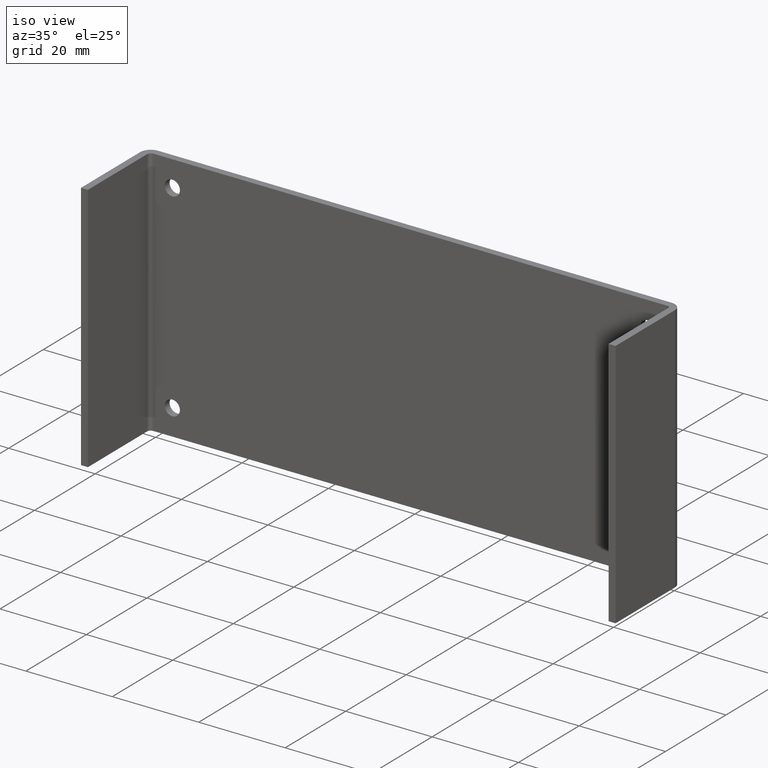
[diagram: clean part render]
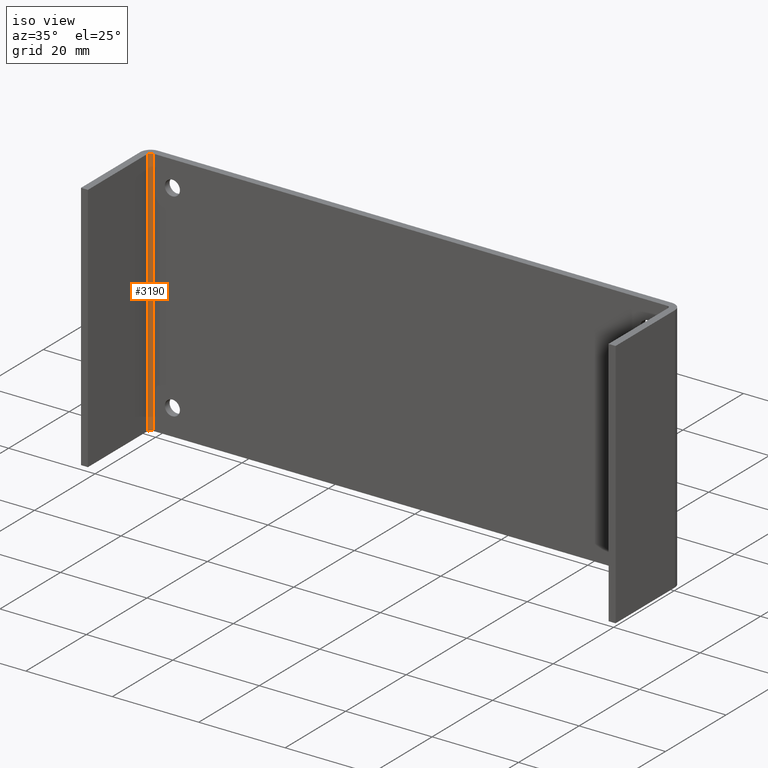
[diagram: same view with one face highlighted and labeled with its STEP entity id]
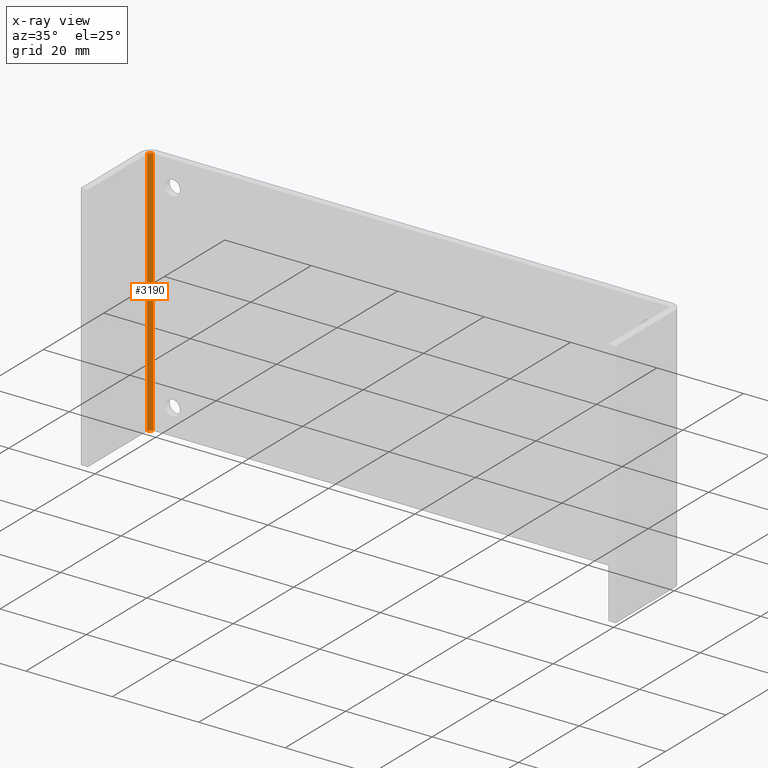
[diagram: x-ray of the same camera — body ghosted, the highlighted face saturated]
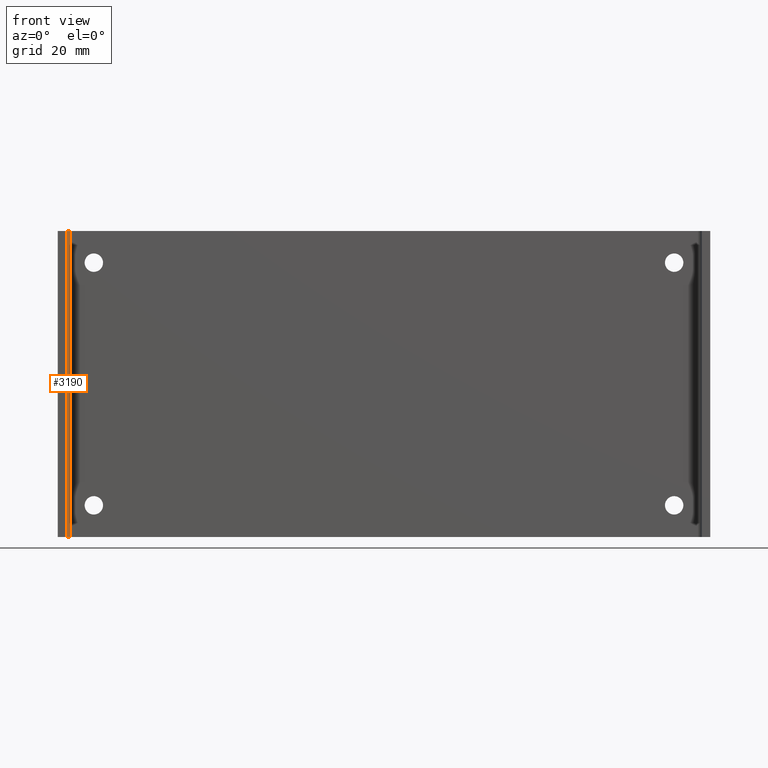
[diagram: same view with one face highlighted and labeled with its STEP entity id]
A machine part, iso view. The second image highlights one B-rep face of the part: STEP entity #3190.
The next image is the same camera in x-ray: the body ghosted, the highlighted face saturated — about 0% of this face is hidden behind the body in this view.
A second angle (front view) of the same face is appended — the face is thin or edge-on in the first view.
In plain terms, the highlighted face is a freeform B-spline surface patch.
Its self-contained STEP definition (entity closure, byte-faithful):
#2812=CARTESIAN_POINT('',(-60.250000000000000,-2.400000000000000,29.0));
#2813=VERTEX_POINT('',#2812);
#2819=CARTESIAN_POINT('',(-59.450000000000003,-1.600000000000000,29.0));
#2820=VERTEX_POINT('',#2819);
#2821=CARTESIAN_POINT('',(-59.450000000000003,-1.600000000000000,29.0));
#2822=CARTESIAN_POINT('',(-60.250000000000007,-1.600000000000000,29.0));
#2823=CARTESIAN_POINT('',(-60.250000000000007,-2.400000000000000,29.0));
#2831=(BOUNDED_CURVE()B_SPLINE_CURVE(2,(#2821,#2822,#2823),.UNSPECIFIED.,.F.,.U.)CURVE()GEOMETRIC_REPRESENTATION_ITEM()QUASI_UNIFORM_CURVE()RATIONAL_B_SPLINE_CURVE((1.0,0.707106781186548,1.0))REPRESENTATION_ITEM(''));
#2832=EDGE_CURVE('',#2820,#2813,#2831,.T.);
#2980=CARTESIAN_POINT('',(-59.450000000000003,-1.600000000000000,-29.0));
#2981=VERTEX_POINT('',#2980);
#2987=CARTESIAN_POINT('',(-60.250000000000000,-2.400000000000000,-29.0));
#2988=VERTEX_POINT('',#2987);
#2989=CARTESIAN_POINT('',(-59.450000000000003,-1.600000000000000,-29.0));
#2990=CARTESIAN_POINT('',(-60.250000000000007,-1.600000000000000,-29.0));
#2991=CARTESIAN_POINT('',(-60.250000000000007,-2.400000000000000,-29.0));
#2999=(BOUNDED_CURVE()B_SPLINE_CURVE(2,(#2989,#2990,#2991),.UNSPECIFIED.,.F.,.U.)CURVE()GEOMETRIC_REPRESENTATION_ITEM()QUASI_UNIFORM_CURVE()RATIONAL_B_SPLINE_CURVE((1.0,0.707106781186548,1.0))REPRESENTATION_ITEM(''));
#3000=EDGE_CURVE('',#2981,#2988,#2999,.T.);
#3132=CARTESIAN_POINT('',(-59.450000000000003,-1.600000000000000,-29.0));
#3133=CARTESIAN_POINT('',(-59.450000000000003,-1.600000000000000,29.0));
#3134=QUASI_UNIFORM_CURVE('',1,(#3132,#3133),.UNSPECIFIED.,.F.,.U.);
#3135=EDGE_CURVE('',#2981,#2820,#3134,.T.);
#3166=CARTESIAN_POINT('',(-60.249725859980451,-2.420941558646300,-30.450000000000010));
#3167=CARTESIAN_POINT('',(-60.249725859980451,-2.420941558646300,30.486250000000009));
#3168=CARTESIAN_POINT('',(-60.272579560956800,-1.548193929124702,-30.449999999999999));
#3169=CARTESIAN_POINT('',(-60.272579560956800,-1.548193929124702,30.486250000000005));
#3170=CARTESIAN_POINT('',(-59.401161168372120,-1.601492161262506,-30.450000000000010));
#3171=CARTESIAN_POINT('',(-59.401161168372120,-1.601492161262506,30.486250000000009));
#3179=(BOUNDED_SURFACE()B_SPLINE_SURFACE(1,2,((#3166,#3168,#3170),(#3167,#3169,#3171)),.UNSPECIFIED.,.F.,.F.,.U.)B_SPLINE_SURFACE_WITH_KNOTS((2,2),(3,3),(0.0,60.936250000000022),(0.0,1.0),.UNSPECIFIED.)GEOMETRIC_REPRESENTATION_ITEM()RATIONAL_B_SPLINE_SURFACE(((1.0,0.675590207615660,1.0),(1.0,0.675590207615660,1.0)))REPRESENTATION_ITEM('')SURFACE());
#3180=ORIENTED_EDGE('',*,*,#2832,.T.);
#3181=CARTESIAN_POINT('',(-60.250000000000000,-2.400000000000000,-29.0));
#3182=CARTESIAN_POINT('',(-60.250000000000000,-2.400000000000000,29.0));
#3183=QUASI_UNIFORM_CURVE('',1,(#3181,#3182),.UNSPECIFIED.,.F.,.U.);
#3184=EDGE_CURVE('',#2988,#2813,#3183,.T.);
#3185=ORIENTED_EDGE('',*,*,#3184,.F.);
#3186=ORIENTED_EDGE('',*,*,#3000,.F.);
#3187=ORIENTED_EDGE('',*,*,#3135,.T.);
#3188=EDGE_LOOP('',(#3180,#3185,#3186,#3187));
#3189=FACE_OUTER_BOUND('',#3188,.T.);
#3190=ADVANCED_FACE('',(#3189),#3179,.F.);